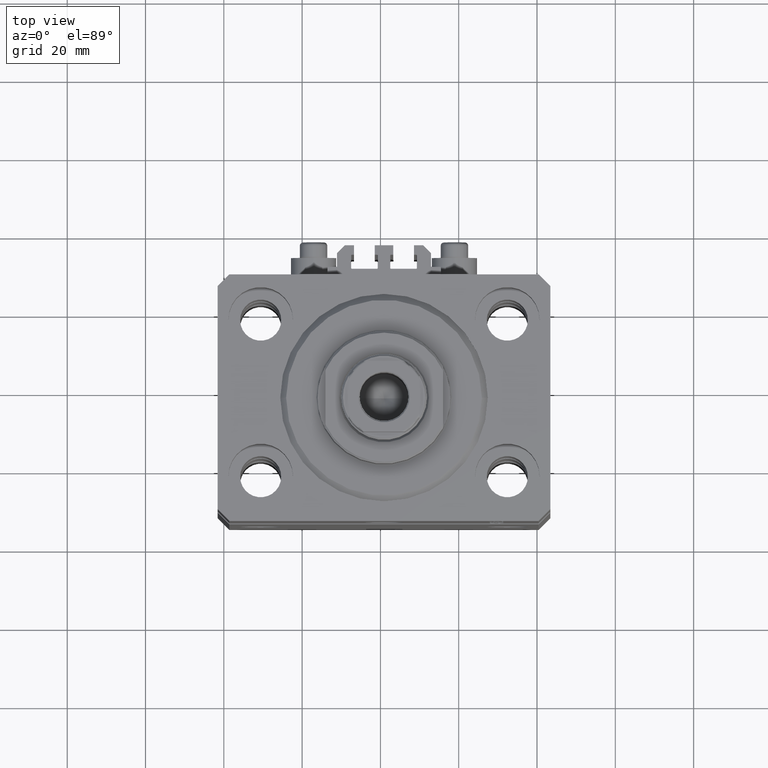
[diagram: clean part render]
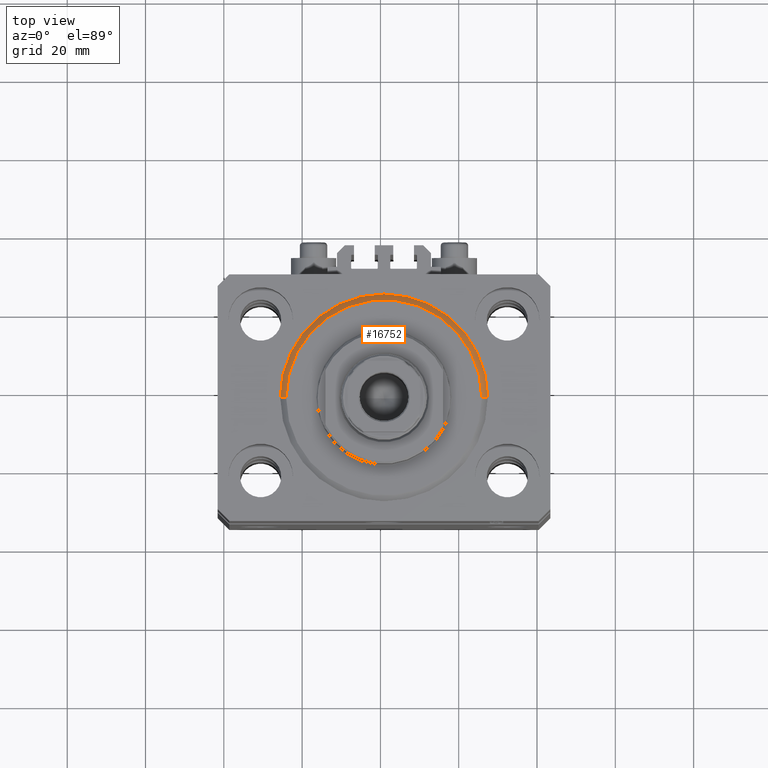
[diagram: same view with one face highlighted and labeled with its STEP entity id]
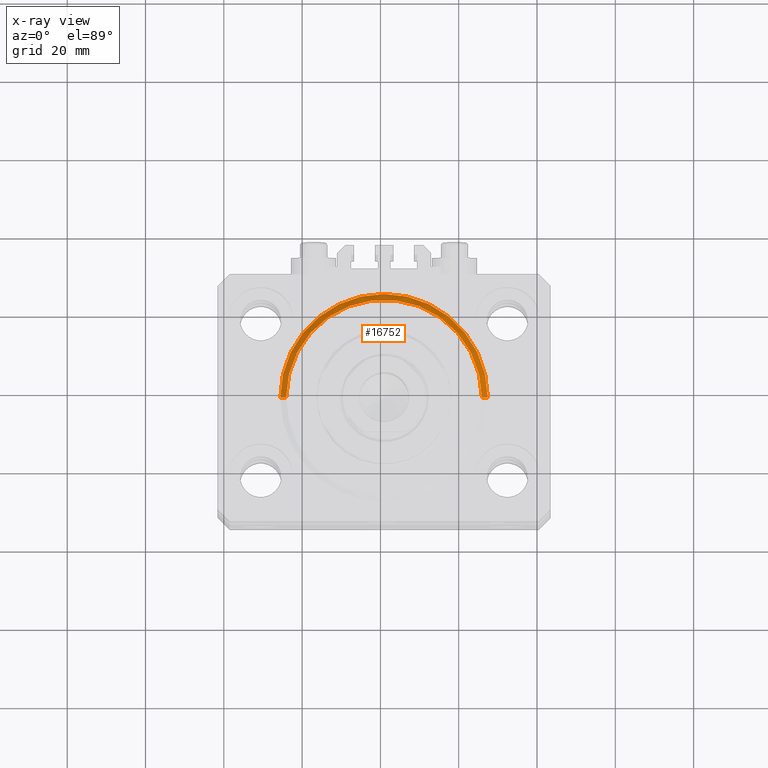
[diagram: x-ray of the same camera — body ghosted, the highlighted face saturated]
A machine part, top view. The second image highlights one B-rep face of the part: STEP entity #16752.
The next image is the same camera in x-ray: the body ghosted, the highlighted face saturated — about 0% of this face is hidden behind the body in this view.
In plain terms, the highlighted conical surface has half-angle 45 deg.
Its self-contained STEP definition (entity closure, byte-faithful):
#1835 = VERTEX_POINT ( 'NONE', #13984 ) ;
#1836 = DIRECTION ( 'NONE',  ( 0.7071067811865483499, 0.000000000000000000, 0.7071067811865466846 ) ) ;
#3025 = FACE_OUTER_BOUND ( 'NONE', #44603, .T. ) ;
#3555 = CARTESIAN_POINT ( 'NONE',  ( -26.50000000000000355, 3.245314017740486554E-15, 1.500000000000018652 ) ) ;
#3758 = DIRECTION ( 'NONE',  ( 1.000000000000000000, 0.000000000000000000, 0.000000000000000000 ) ) ;
#4970 = EDGE_CURVE ( 'NONE', #28224, #16247, #37245, .T. ) ;
#5877 = ORIENTED_EDGE ( 'NONE', *, *, #13763, .F. ) ;
#8307 = AXIS2_PLACEMENT_3D ( 'NONE', #14592, #25640, #3758 ) ;
#8791 = VECTOR ( 'NONE', #1836, 1000.000000000000000 ) ;
#9511 = ORIENTED_EDGE ( 'NONE', *, *, #4970, .T. ) ;
#13763 = EDGE_CURVE ( 'NONE', #19909, #16247, #48255, .T. ) ;
#13984 = CARTESIAN_POINT ( 'NONE',  ( 24.99999999999998224, 0.000000000000000000, 0.000000000000000000 ) ) ;
#14592 = CARTESIAN_POINT ( 'NONE',  ( 0.000000000000000000, 0.000000000000000000, 1.500000000000018652 ) ) ;
#16247 = VERTEX_POINT ( 'NONE', #45908 ) ;
#16752 = ADVANCED_FACE ( 'NONE', ( #3025 ), #27126, .T. ) ;
#18291 = ORIENTED_EDGE ( 'NONE', *, *, #34675, .F. ) ;
#18490 = VECTOR ( 'NONE', #18572, 1000.000000000000000 ) ;
#18572 = DIRECTION ( 'NONE',  ( -0.7071067811865483499, 8.659560562354942719E-17, 0.7071067811865466846 ) ) ;
#18685 = EDGE_CURVE ( 'NONE', #28224, #1835, #48396, .T. ) ;
#19909 = VERTEX_POINT ( 'NONE', #38055 ) ;
#22477 = AXIS2_PLACEMENT_3D ( 'NONE', #26850, #31029, #38902 ) ;
#24228 = CARTESIAN_POINT ( 'NONE',  ( 26.50000000000000355, 0.000000000000000000, 1.500000000000018652 ) ) ;
#25640 = DIRECTION ( 'NONE',  ( -0.000000000000000000, -0.000000000000000000, 1.000000000000000000 ) ) ;
#25920 = DIRECTION ( 'NONE',  ( 1.000000000000000000, 0.000000000000000000, 0.000000000000000000 ) ) ;
#26395 = CARTESIAN_POINT ( 'NONE',  ( 0.000000000000000000, 0.000000000000000000, 1.500000000000018652 ) ) ;
#26850 = CARTESIAN_POINT ( 'NONE',  ( 0.000000000000000000, 0.000000000000000000, 0.000000000000000000 ) ) ;
#27126 = CONICAL_SURFACE ( 'NONE', #8307, 26.50000000000000355, 0.7853981633974495002 ) ;
#28224 = VERTEX_POINT ( 'NONE', #37350 ) ;
#28622 = LINE ( 'NONE', #24228, #8791 ) ;
#30944 = ORIENTED_EDGE ( 'NONE', *, *, #18685, .F. ) ;
#31029 = DIRECTION ( 'NONE',  ( -0.000000000000000000, -0.000000000000000000, -1.000000000000000000 ) ) ;
#34087 = AXIS2_PLACEMENT_3D ( 'NONE', #26395, #41419, #25920 ) ;
#34675 = EDGE_CURVE ( 'NONE', #1835, #19909, #28622, .T. ) ;
#37245 = LINE ( 'NONE', #3555, #18490 ) ;
#37350 = CARTESIAN_POINT ( 'NONE',  ( -24.99999999999998224, 3.153465507804433615E-15, 0.000000000000000000 ) ) ;
#38055 = CARTESIAN_POINT ( 'NONE',  ( 26.50000000000000355, 3.245314017740486554E-15, 1.500000000000018652 ) ) ;
#38902 = DIRECTION ( 'NONE',  ( 1.000000000000000000, 0.000000000000000000, 0.000000000000000000 ) ) ;
#41419 = DIRECTION ( 'NONE',  ( -0.000000000000000000, -0.000000000000000000, 1.000000000000000000 ) ) ;
#44603 = EDGE_LOOP ( 'NONE', ( #30944, #9511, #5877, #18291 ) ) ;
#45908 = CARTESIAN_POINT ( 'NONE',  ( -26.50000000000000355, 0.000000000000000000, 1.500000000000018652 ) ) ;
#48255 = CIRCLE ( 'NONE', #34087, 26.50000000000000355 ) ;
#48396 = CIRCLE ( 'NONE', #22477, 24.99999999999998224 ) ;